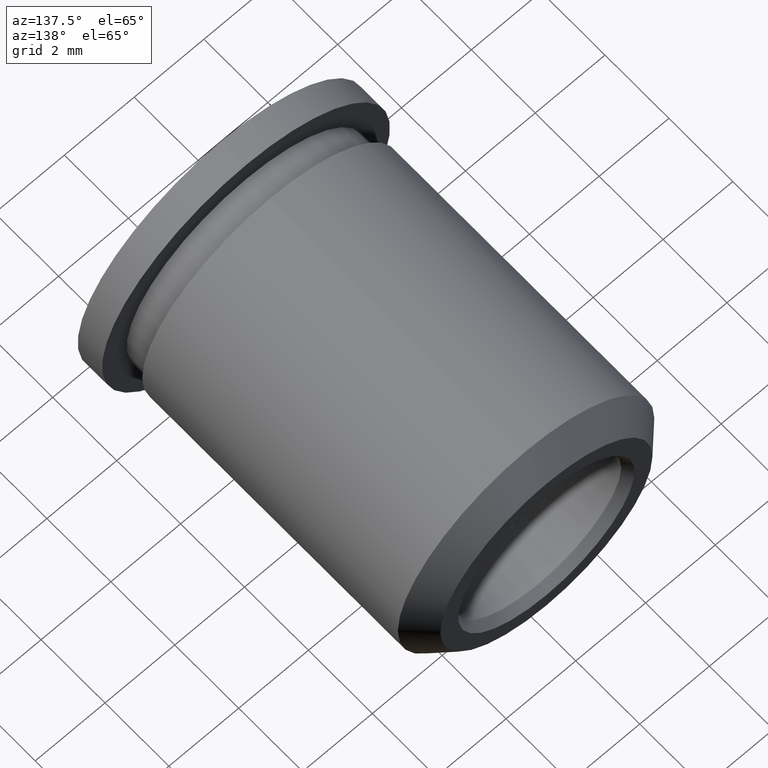
[diagram: clean part render]
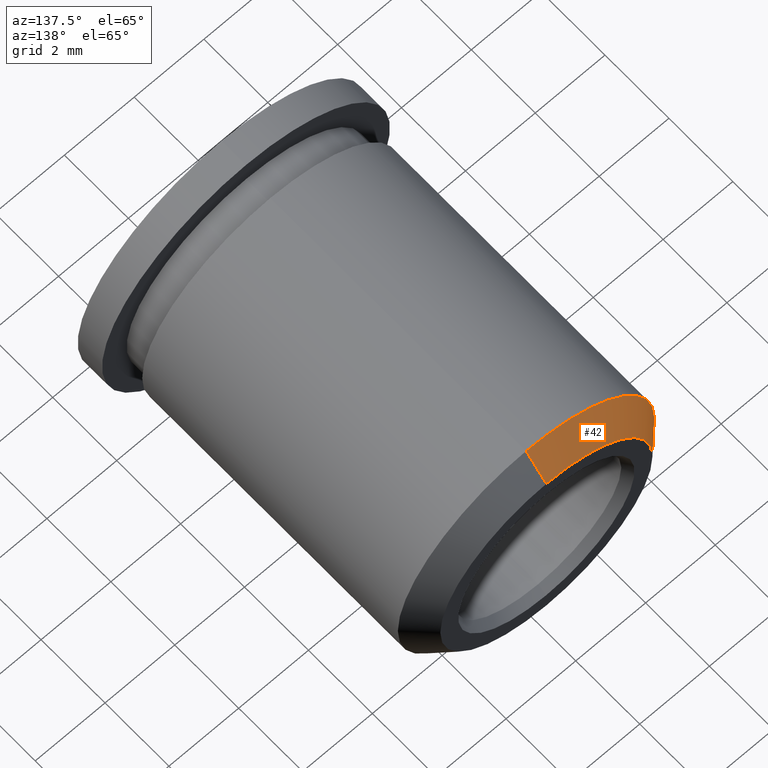
[diagram: same view with one face highlighted and labeled with its STEP entity id]
A machine part, auxiliary view. The second image highlights one B-rep face of the part: STEP entity #42.
In plain terms, the highlighted conical surface has half-angle 45 deg.
Its self-contained STEP definition (entity closure, byte-faithful):
#2 = ORIENTED_EDGE ( 'NONE', *, *, #3, .F. ) ;
#3 = EDGE_CURVE ( 'NONE', #29, #113, #163, .T. ) ;
#8 = ORIENTED_EDGE ( 'NONE', *, *, #115, .T. ) ;
#9 = ORIENTED_EDGE ( 'NONE', *, *, #41, .T. ) ;
#26 = EDGE_CURVE ( 'NONE', #113, #125, #260, .T. ) ;
#29 = VERTEX_POINT ( 'NONE', #256 ) ;
#30 = VERTEX_POINT ( 'NONE', #255 ) ;
#41 = EDGE_CURVE ( 'NONE', #30, #125, #375, .T. ) ;
#42 = ADVANCED_FACE ( 'NONE', ( #376 ), #344, .T. ) ;
#47 = EDGE_LOOP ( 'NONE', ( #48, #2, #8, #9 ) ) ;
#48 = ORIENTED_EDGE ( 'NONE', *, *, #26, .F. ) ;
#113 = VERTEX_POINT ( 'NONE', #530 ) ;
#115 = EDGE_CURVE ( 'NONE', #29, #30, #529, .T. ) ;
#125 = VERTEX_POINT ( 'NONE', #646 ) ;
#159 = DIRECTION ( 'NONE',  ( 0.0000000000000000000, 0.0000000000000000000, 1.000000000000000000 ) ) ;
#160 = DIRECTION ( 'NONE',  ( 0.0000000000000000000, 1.000000000000000000, 0.0000000000000000000 ) ) ;
#161 = CARTESIAN_POINT ( 'NONE',  ( 1.508592567273786700E-015, 5.079999999999999200, 0.0000000000000000000 ) ) ;
#162 = AXIS2_PLACEMENT_3D ( 'NONE', #161, #160, #159 ) ;
#163 = CIRCLE ( 'NONE', #162, 3.041649999999998400 ) ;
#255 = CARTESIAN_POINT ( 'NONE',  ( 1.958852332682297700E-015, 4.445000000000000300, -3.676649999999996000 ) ) ;
#256 = CARTESIAN_POINT ( 'NONE',  ( 1.508592567273786700E-015, 5.079999999999999200, -3.041649999999998400 ) ) ;
#257 = DIRECTION ( 'NONE',  ( 8.659560562354921800E-017, -0.7071067811865484600, 0.7071067811865465700 ) ) ;
#258 = VECTOR ( 'NONE', #257, 1000.000000000000000 ) ;
#259 = CARTESIAN_POINT ( 'NONE',  ( 1.881087260936441500E-015, 5.079999999999999200, 3.041649999999998400 ) ) ;
#260 = LINE ( 'NONE', #259, #258 ) ;
#320 = DIRECTION ( 'NONE',  ( 0.0000000000000000000, 0.0000000000000000000, 1.000000000000000000 ) ) ;
#321 = DIRECTION ( 'NONE',  ( 0.0000000000000000000, 1.000000000000000000, 0.0000000000000000000 ) ) ;
#322 = CARTESIAN_POINT ( 'NONE',  ( 1.508592567273786700E-015, 4.445000000000000300, 0.0000000000000000000 ) ) ;
#344 = CONICAL_SURFACE ( 'NONE', #392, 3.041649999999998400, 0.7853981633974469500 ) ;
#369 = DIRECTION ( 'NONE',  ( 0.0000000000000000000, 0.0000000000000000000, -1.000000000000000000 ) ) ;
#374 = AXIS2_PLACEMENT_3D ( 'NONE', #322, #321, #320 ) ;
#375 = CIRCLE ( 'NONE', #374, 3.676649999999996000 ) ;
#376 = FACE_OUTER_BOUND ( 'NONE', #47, .T. ) ;
#390 = DIRECTION ( 'NONE',  ( 0.0000000000000000000, -1.000000000000000000, 0.0000000000000000000 ) ) ;
#391 = CARTESIAN_POINT ( 'NONE',  ( 1.508592567273786700E-015, 5.079999999999999200, 0.0000000000000000000 ) ) ;
#392 = AXIS2_PLACEMENT_3D ( 'NONE', #391, #390, #369 ) ;
#526 = DIRECTION ( 'NONE',  ( 0.0000000000000000000, -0.7071067811865484600, -0.7071067811865465700 ) ) ;
#527 = VECTOR ( 'NONE', #526, 1000.000000000000000 ) ;
#528 = CARTESIAN_POINT ( 'NONE',  ( 1.508592567273786700E-015, 5.079999999999999200, -3.041649999999998400 ) ) ;
#529 = LINE ( 'NONE', #528, #527 ) ;
#530 = CARTESIAN_POINT ( 'NONE',  ( 1.919969796809369600E-015, 5.079999999999999200, 3.041649999999998400 ) ) ;
#646 = CARTESIAN_POINT ( 'NONE',  ( 1.508592567273786700E-015, 4.445000000000000300, 3.676649999999996000 ) ) ;